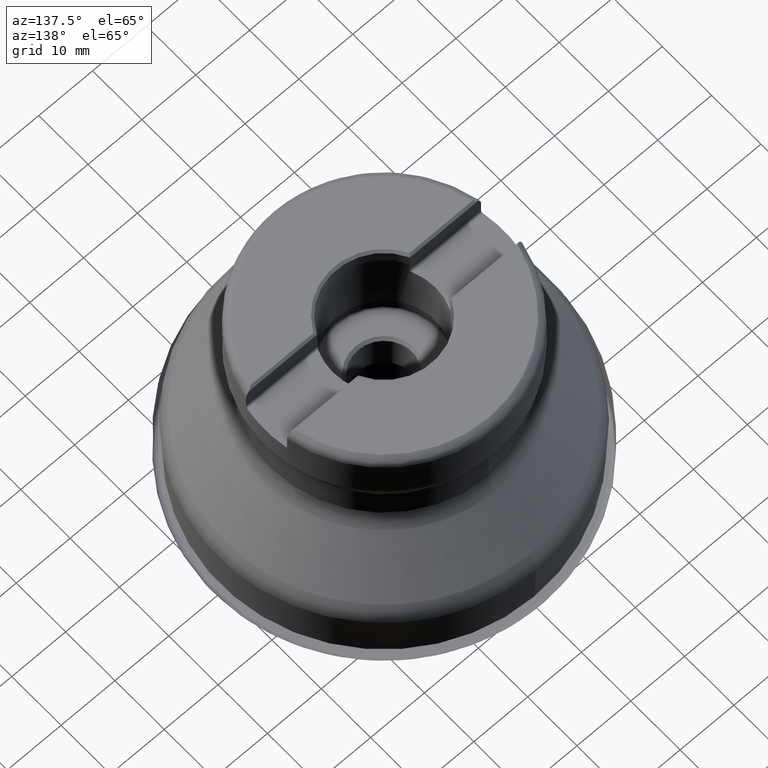
[diagram: clean part render]
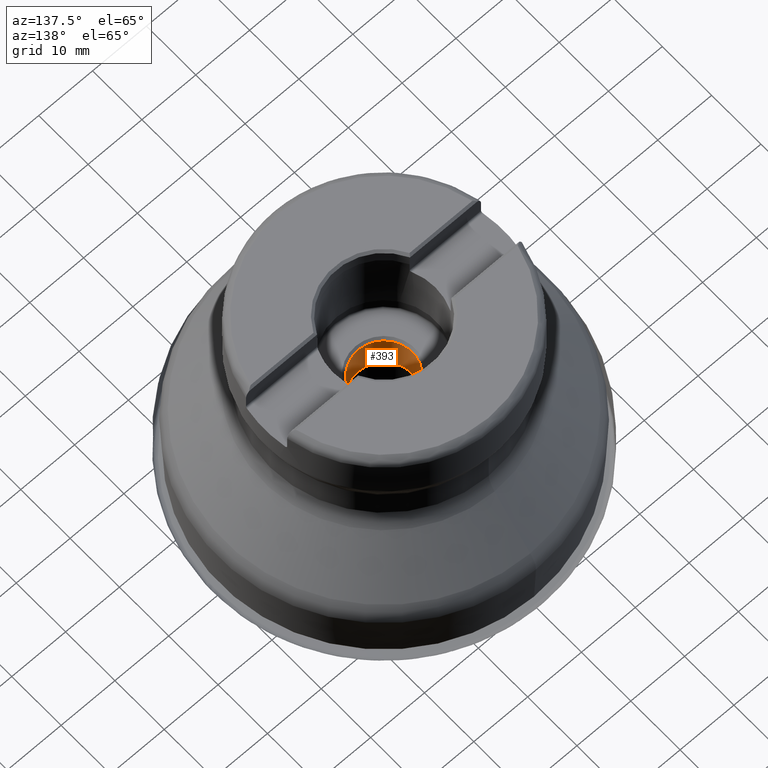
[diagram: same view with one face highlighted and labeled with its STEP entity id]
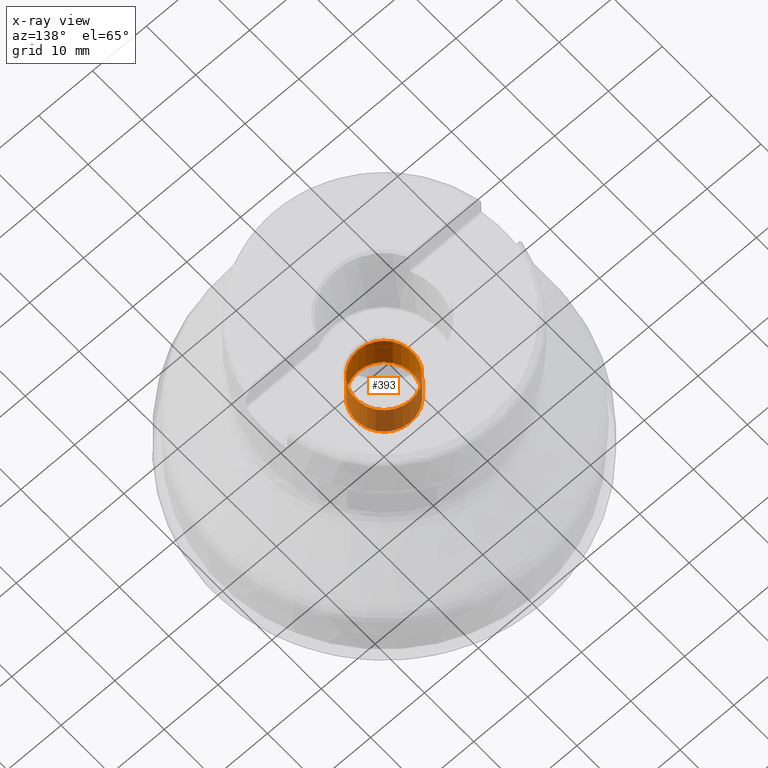
[diagram: x-ray of the same camera — body ghosted, the highlighted face saturated]
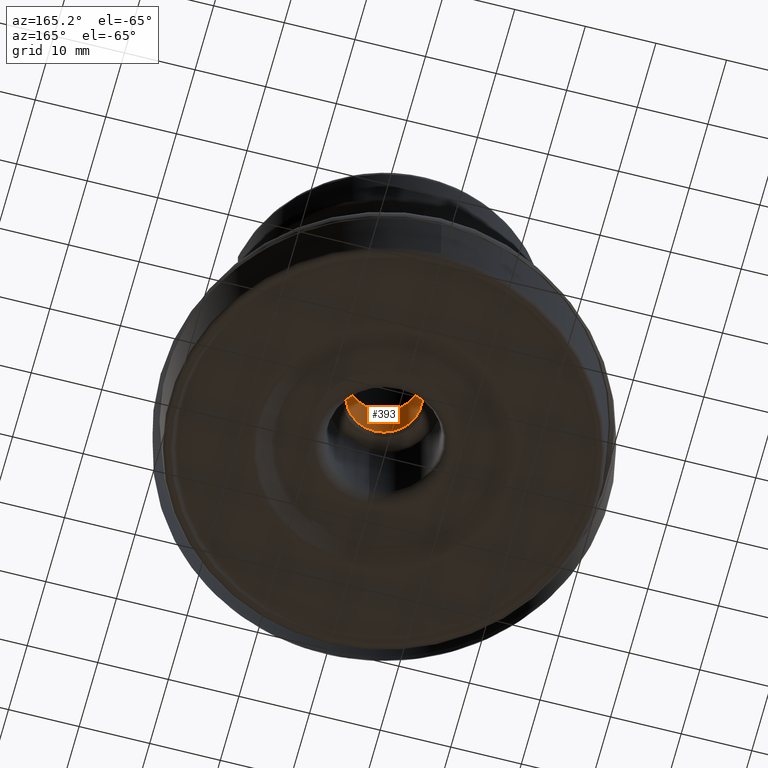
[diagram: same view with one face highlighted and labeled with its STEP entity id]
A machine part, auxiliary view. The second image highlights one B-rep face of the part: STEP entity #393.
The next image is the same camera in x-ray: the body ghosted, the highlighted face saturated — about 53% of this face is hidden behind the body in this view.
A second angle (auxiliary view) of the same face is appended — the face is thin or edge-on in the first view.
In plain terms, the highlighted cylindrical surface (bore or boss wall) has radius 5.25 mm, axis along (0, -0, -1).
Its self-contained STEP definition (entity closure, byte-faithful):
#166=CYLINDRICAL_SURFACE('',#1268,5.25);
#192=FACE_BOUND('',#518,.T.);
#193=FACE_BOUND('',#519,.T.);
#393=ADVANCED_FACE('',(#192,#193),#166,.F.);
#518=EDGE_LOOP('',(#817));
#519=EDGE_LOOP('',(#818));
#639=CIRCLE('',#1266,5.25);
#640=CIRCLE('',#1267,5.25);
#817=ORIENTED_EDGE('',*,*,#1093,.T.);
#818=ORIENTED_EDGE('',*,*,#1094,.T.);
#974=VERTEX_POINT('',#2257);
#975=VERTEX_POINT('',#2259);
#1093=EDGE_CURVE('',#974,#974,#639,.T.);
#1094=EDGE_CURVE('',#975,#975,#640,.T.);
#1266=AXIS2_PLACEMENT_3D('',#2256,#1486,#1487);
#1267=AXIS2_PLACEMENT_3D('',#2258,#1488,#1489);
#1268=AXIS2_PLACEMENT_3D('',#2260,#1490,#1491);
#1486=DIRECTION('',(0.,1.17145536458252E-15,1.));
#1487=DIRECTION('',(0.,1.,-1.32169407693471E-15));
#1488=DIRECTION('',(0.,-1.17145536458252E-15,-1.));
#1489=DIRECTION('',(0.,-1.,1.32169407693471E-15));
#1490=DIRECTION('',(0.,-1.17145536458252E-15,-1.));
#1491=DIRECTION('',(0.,1.,-1.32169407693471E-15));
#2256=CARTESIAN_POINT('',(0.,2.91692385781049E-14,24.9));
#2257=CARTESIAN_POINT('',(0.,5.25000000000003,24.9));
#2258=CARTESIAN_POINT('',(0.,2.10276237942563E-14,17.95));
#2259=CARTESIAN_POINT('',(0.,-5.24999999999998,17.95));
#2260=CARTESIAN_POINT('',(0.,5.23054820286097E-14,44.65));